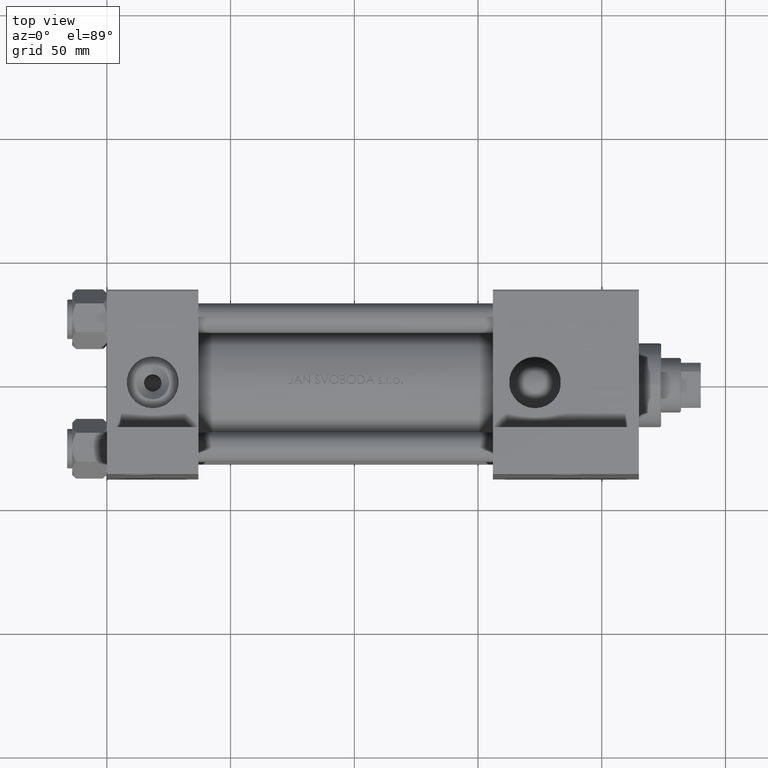
[diagram: clean part render]
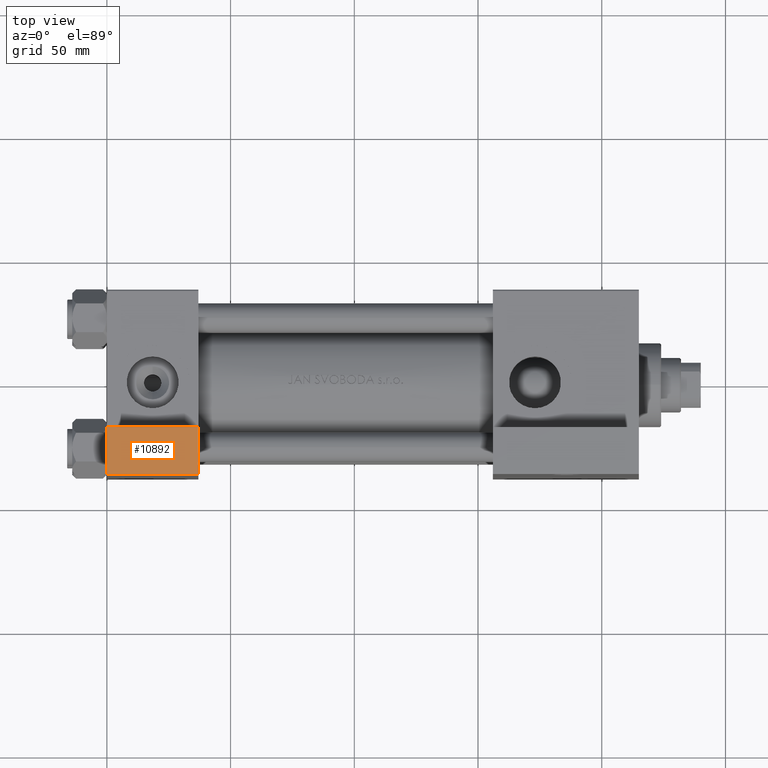
[diagram: same view with one face highlighted and labeled with its STEP entity id]
A machine part, top view. The second image highlights one B-rep face of the part: STEP entity #10892.
In plain terms, the highlighted planar face has unit normal (0, 0, 1).
Its self-contained STEP definition (entity closure, byte-faithful):
#558 = VECTOR ( 'NONE', #35179, 1000.000000000000000 ) ;
#1161 = VERTEX_POINT ( 'NONE', #14672 ) ;
#3520 = DIRECTION ( 'NONE',  ( 1.000000000000000000, 0.000000000000000000, 0.000000000000000000 ) ) ;
#4170 = EDGE_CURVE ( 'NONE', #39359, #1161, #39188, .T. ) ;
#5273 = LINE ( 'NONE', #8748, #558 ) ;
#5429 = ORIENTED_EDGE ( 'NONE', *, *, #5994, .F. ) ;
#5517 = VECTOR ( 'NONE', #34600, 1000.000000000000000 ) ;
#5994 = EDGE_CURVE ( 'NONE', #21435, #46414, #42572, .T. ) ;
#8031 = DIRECTION ( 'NONE',  ( 0.000000000000000000, -1.734723475976806848E-16, -1.000000000000000000 ) ) ;
#8748 = CARTESIAN_POINT ( 'NONE',  ( 3.977209754999747208E-16, -63.50000000000000000, -37.49999999999999289 ) ) ;
#10743 = DIRECTION ( 'NONE',  ( 0.000000000000000000, -1.000000000000000000, 1.734723475976806848E-16 ) ) ;
#10892 = ADVANCED_FACE ( 'NONE', ( #36680 ), #17738, .T. ) ;
#11911 = ORIENTED_EDGE ( 'NONE', *, *, #47348, .F. ) ;
#14672 = CARTESIAN_POINT ( 'NONE',  ( 3.977209754999747208E-16, -63.50000000000000000, -37.49999999999999289 ) ) ;
#16014 = CARTESIAN_POINT ( 'NONE',  ( 3.977209754999747208E-16, -63.49999999999998579, 26.72167621838007889 ) ) ;
#17738 = PLANE ( 'NONE',  #30212 ) ;
#18993 = CARTESIAN_POINT ( 'NONE',  ( 3.977209754999747208E-16, -63.50000000000000000, -18.50000000000000355 ) ) ;
#19209 = CARTESIAN_POINT ( 'NONE',  ( 3.977209754999747208E-16, -63.50000000000000000, -18.50000000000000355 ) ) ;
#21435 = VERTEX_POINT ( 'NONE', #45784 ) ;
#23646 = CARTESIAN_POINT ( 'NONE',  ( 37.00000000000000000, -63.49999999999998579, 26.72167621838007889 ) ) ;
#25895 = EDGE_LOOP ( 'NONE', ( #11911, #34342, #37581, #5429 ) ) ;
#29697 = CARTESIAN_POINT ( 'NONE',  ( 3.977209754999747208E-16, -63.49999999999998579, 26.72167621838007889 ) ) ;
#30212 = AXIS2_PLACEMENT_3D ( 'NONE', #29697, #10743, #44639 ) ;
#30428 = LINE ( 'NONE', #19209, #46133 ) ;
#34342 = ORIENTED_EDGE ( 'NONE', *, *, #4170, .T. ) ;
#34600 = DIRECTION ( 'NONE',  ( 0.000000000000000000, -1.734723475976806848E-16, -1.000000000000000000 ) ) ;
#34884 = EDGE_CURVE ( 'NONE', #46414, #1161, #5273, .T. ) ;
#35179 = DIRECTION ( 'NONE',  ( -1.000000000000000000, -0.000000000000000000, -0.000000000000000000 ) ) ;
#36680 = FACE_OUTER_BOUND ( 'NONE', #25895, .T. ) ;
#37581 = ORIENTED_EDGE ( 'NONE', *, *, #34884, .F. ) ;
#39188 = LINE ( 'NONE', #16014, #45184 ) ;
#39359 = VERTEX_POINT ( 'NONE', #18993 ) ;
#42572 = LINE ( 'NONE', #23646, #5517 ) ;
#44625 = CARTESIAN_POINT ( 'NONE',  ( 37.00000000000000000, -63.50000000000000000, -37.49999999999999289 ) ) ;
#44639 = DIRECTION ( 'NONE',  ( 0.000000000000000000, -1.734723475976806848E-16, -1.000000000000000000 ) ) ;
#45184 = VECTOR ( 'NONE', #8031, 1000.000000000000000 ) ;
#45784 = CARTESIAN_POINT ( 'NONE',  ( 37.00000000000000000, -63.50000000000000000, -18.50000000000000355 ) ) ;
#46133 = VECTOR ( 'NONE', #3520, 1000.000000000000000 ) ;
#46414 = VERTEX_POINT ( 'NONE', #44625 ) ;
#47348 = EDGE_CURVE ( 'NONE', #39359, #21435, #30428, .T. ) ;